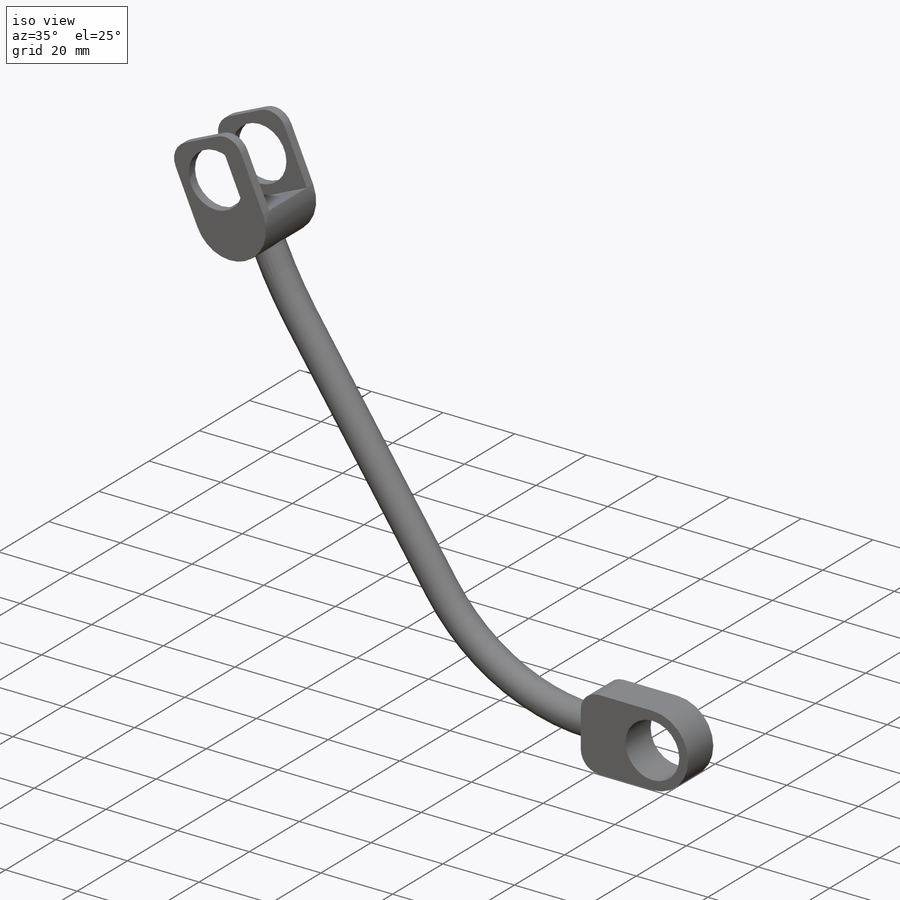
[diagram: iso view]
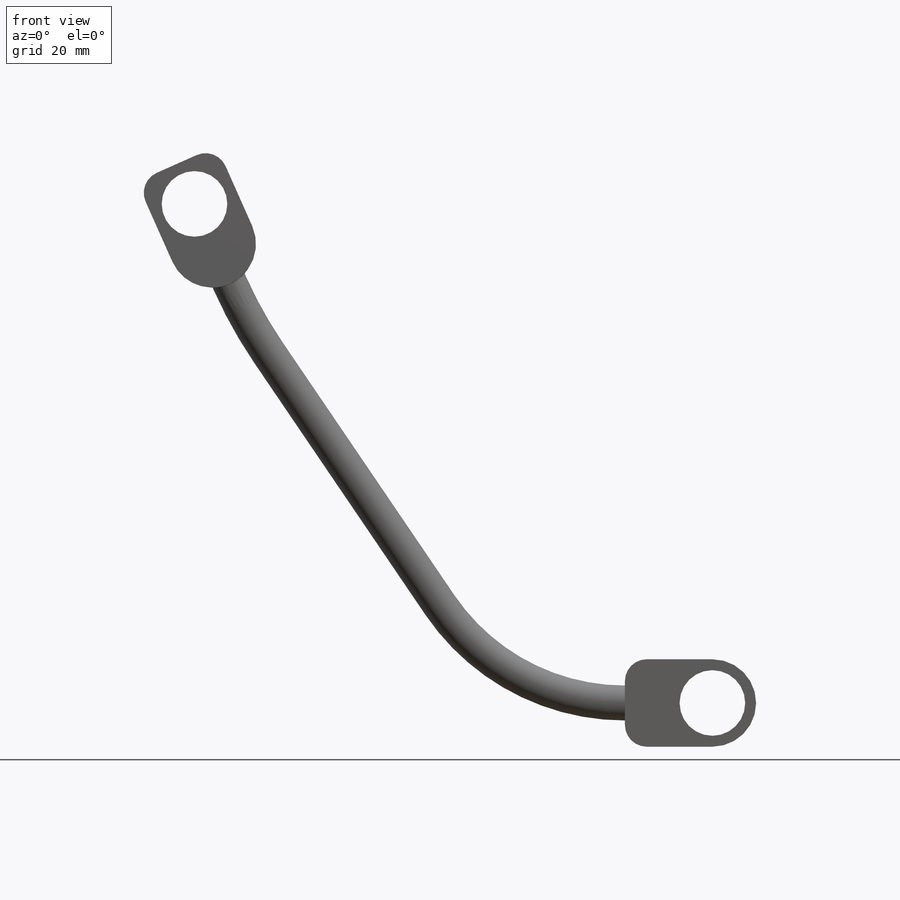
[diagram: front view]
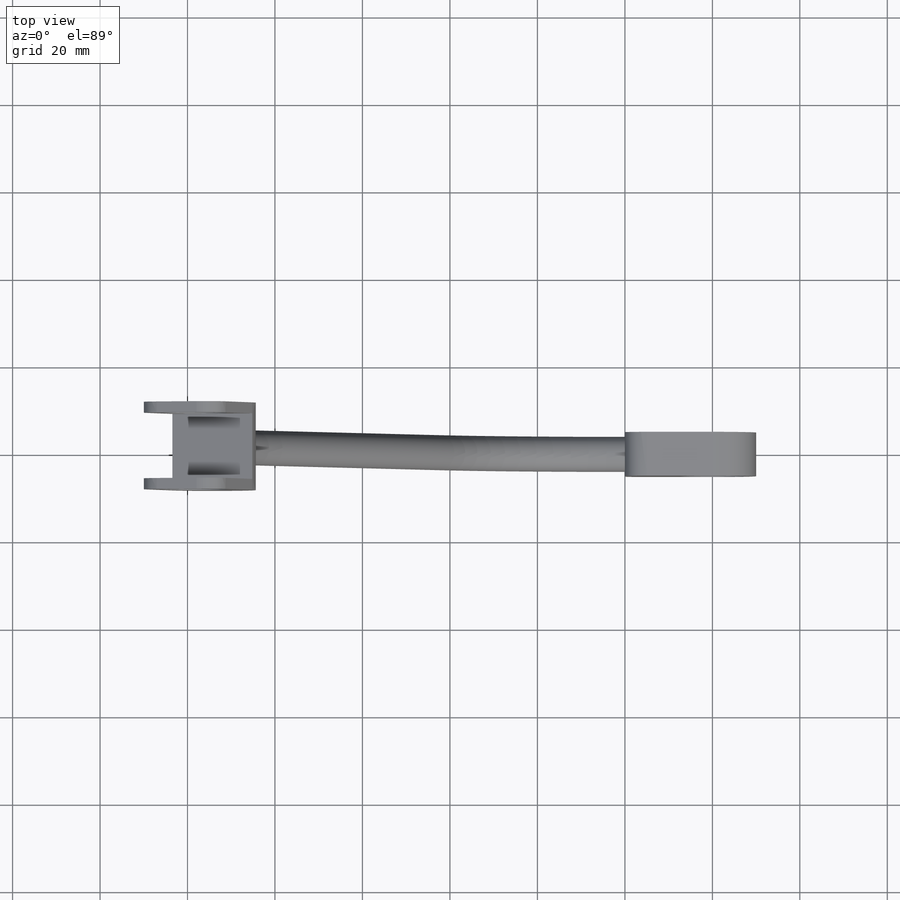
[diagram: top view]
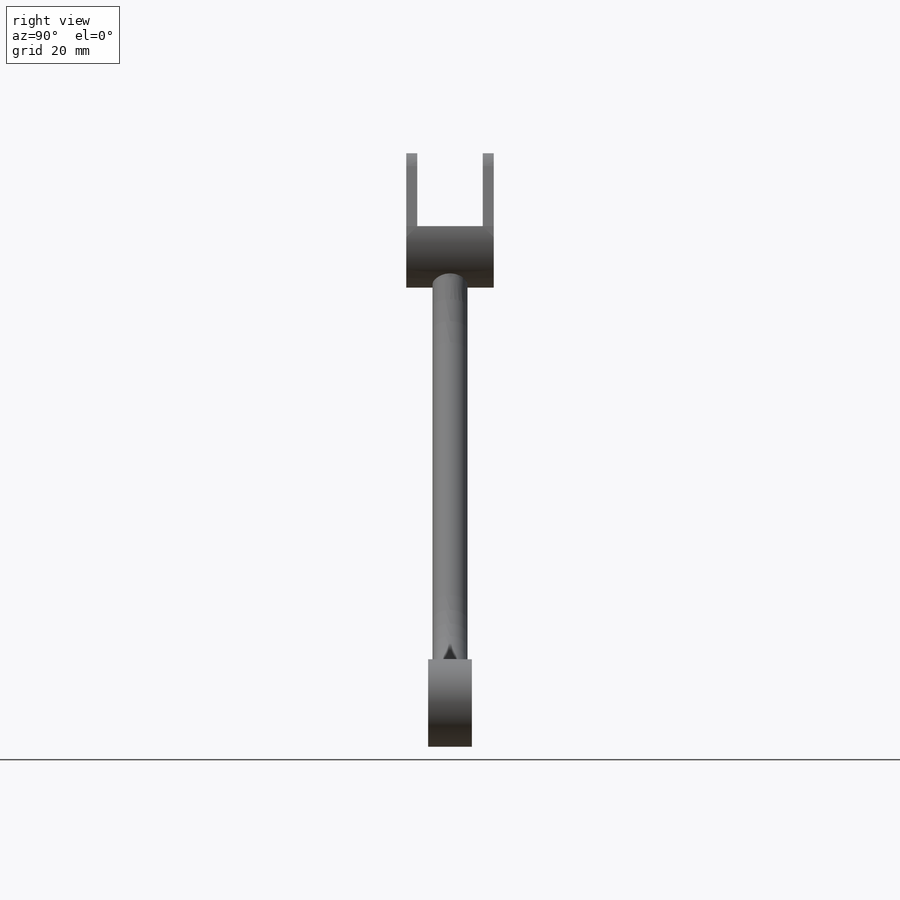
[diagram: right view]
SOLIDWORKS PART (.sldprt)
format: sldprt  version: not decoded by parser v0  size: 514,560 bytes
history: native  units: mm
features: sketch x8, fillet x4, cut_extrude x4, plane x3, extrude x2, material x1, sweep x1 (+10 scaffold rows collapsed)
feature tree (33):
  scaffold x10  (default folders/planes/origin — collapsed)
  material  "Material <nicht festgelegt>"
  plane  "Ebene vorne"
  plane  "Ebene oben"
  plane  "Ebene rechts"
  sketch  "Skizze1"  dims[c1.D1=~46.458138mm c2.D1=30.0mm c2.D2=20.0mm c2.D3=10.0mm]
  extrude  "Aufsatz-Linear austragen1"  Depth=10mm
  fillet  "Verrundung1"  [1 undecoded]
  sketch  "Skizze2"  dims[c1.D1=~17.931744mm c2.D1=15.0mm]
  cut_extrude  "Schnitt-Linear austragen1"  [1 undecoded]
  sketch  "Skizze6"  dims[c1.D1=40.0mm c1.D2=100.0mm c1.D3=40.0mm c1.D4=20.0mm c1.D5=~107.68865mm c2.D5=100.0mm c2.D6=~68.262403mm c3.D6=80.0mm c3.D3=10.0mm c4.D3=10.0deg c4.D7=5.0mm c4.D8=5.0mm]
  sketch  "Skizze7"  dims[D1=15.0mm D2=20.0mm D3=30.0mm]
  extrude  "Aufsatz-Linear austragen3"  Depth=20mm
  sketch  "Skizze8"  dims[c1.D1=15.0mm c1.D2=15.0mm c2.D2=10.0mm]
  cut_extrude  "Schnitt-Linear austragen4"  [1 undecoded]
  sketch  "Skizze10"  dims[D1=8.0mm]
  cut_extrude  "Schnitt-Linear austragen6"  Depth=5mm
  sketch  "Skizze9"  dims[D1=8.0mm]
  cut_extrude  "Schnitt-Linear austragen5"  Depth=5mm
  fillet  "Verrundung3"  Radius=5mm
  fillet  "Verrundung4"  Radius=5mm
  fillet  "Verrundung6"  Radius=10mm
  sketch  "Skizze11"  dims[D1=8.0mm]
  sweep  "Austragung1"
decode coverage: 15 of 19 modeling features carry decoded parameters
note: ~ marks probable driven/reference dimensions
note: 3 parameter values undecoded
summary: no parameter record found for 3 features
note: suppression state not decoded; provenance and decode notes live in map.json
